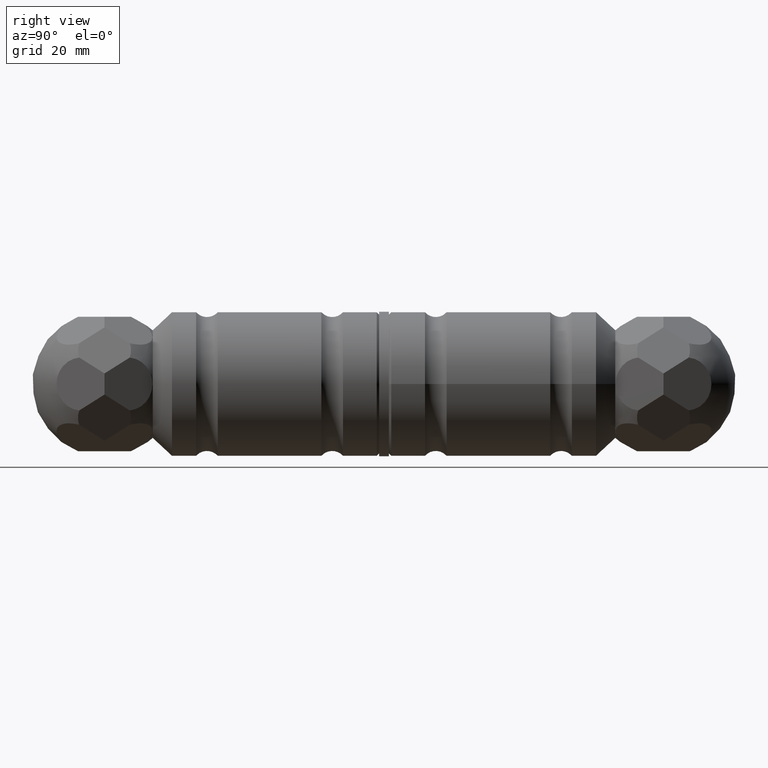
[diagram: clean part render]
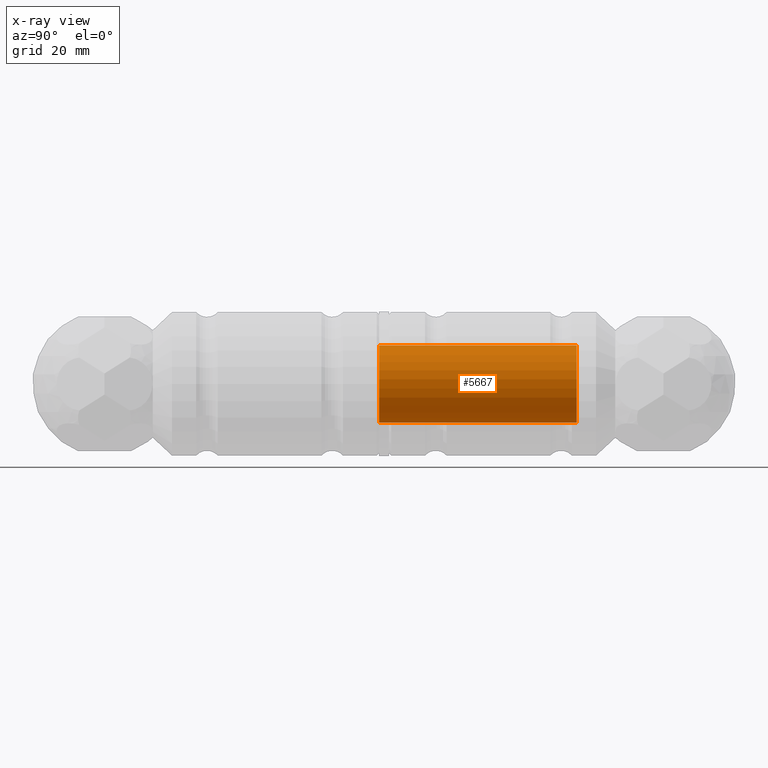
[diagram: x-ray — body ghosted, one internal face saturated and labeled with its STEP entity id]
A machine part, right view, then the same camera in x-ray: the body is ghosted and one INTERNAL B-rep face — a face not visible from any outside direction — is saturated and labeled: STEP entity #5667.
In plain terms, the highlighted cylindrical surface (bore or boss wall) has radius 8 mm, axis along (0, -1, 0).
Its self-contained STEP definition (entity closure, byte-faithful):
#59 = CARTESIAN_POINT ( 'NONE',  ( 0.000000000000000000, -41.00000000000004974, 6.842277657836020854E-46 ) ) ;
#409 = VERTEX_POINT ( 'NONE', #1329 ) ;
#585 = CARTESIAN_POINT ( 'NONE',  ( 0.000000000000000000, 0.000000000000000000, 0.000000000000000000 ) ) ;
#630 = DIRECTION ( 'NONE',  ( 6.162975822039154730E-32, -1.000000000000000000, 0.000000000000000000 ) ) ;
#1329 = CARTESIAN_POINT ( 'NONE',  ( 0.000000000000000000, 0.000000000000000000, -8.000000000000000000 ) ) ;
#1344 = AXIS2_PLACEMENT_3D ( 'NONE', #585, #630, #13278 ) ;
#1376 = CYLINDRICAL_SURFACE ( 'NONE', #10735, 8.000000000000000000 ) ;
#1895 = FACE_OUTER_BOUND ( 'NONE', #11058, .T. ) ;
#2360 = DIRECTION ( 'NONE',  ( -6.162975822039154730E-32, 1.000000000000000000, -0.000000000000000000 ) ) ;
#2657 = EDGE_CURVE ( 'NONE', #409, #409, #7910, .T. ) ;
#3026 = EDGE_LOOP ( 'NONE', ( #3192 ) ) ;
#3192 = ORIENTED_EDGE ( 'NONE', *, *, #8080, .T. ) ;
#3500 = CARTESIAN_POINT ( 'NONE',  ( 0.000000000000000000, -41.00000000000004974, -8.000000000000000000 ) ) ;
#3969 = CIRCLE ( 'NONE', #6935, 8.000000000000000000 ) ;
#5667 = ADVANCED_FACE ( 'NONE', ( #9554, #1895 ), #1376, .T. ) ;
#5950 = ORIENTED_EDGE ( 'NONE', *, *, #2657, .T. ) ;
#6935 = AXIS2_PLACEMENT_3D ( 'NONE', #59, #2360, #8297 ) ;
#7910 = CIRCLE ( 'NONE', #1344, 8.000000000000000000 ) ;
#8080 = EDGE_CURVE ( 'NONE', #10221, #10221, #3969, .T. ) ;
#8297 = DIRECTION ( 'NONE',  ( 0.000000000000000000, 0.000000000000000000, -1.000000000000000000 ) ) ;
#9554 = FACE_OUTER_BOUND ( 'NONE', #3026, .T. ) ;
#9814 = DIRECTION ( 'NONE',  ( -6.162975822039156098E-33, 1.000000000000000000, 0.000000000000000000 ) ) ;
#10221 = VERTEX_POINT ( 'NONE', #3500 ) ;
#10735 = AXIS2_PLACEMENT_3D ( 'NONE', #10817, #9814, #12051 ) ;
#10817 = CARTESIAN_POINT ( 'NONE',  ( 0.000000000000000000, -42.00000000000000000, 0.000000000000000000 ) ) ;
#11058 = EDGE_LOOP ( 'NONE', ( #5950 ) ) ;
#12051 = DIRECTION ( 'NONE',  ( 0.000000000000000000, 0.000000000000000000, 1.000000000000000000 ) ) ;
#13278 = DIRECTION ( 'NONE',  ( 0.000000000000000000, 0.000000000000000000, -1.000000000000000000 ) ) ;